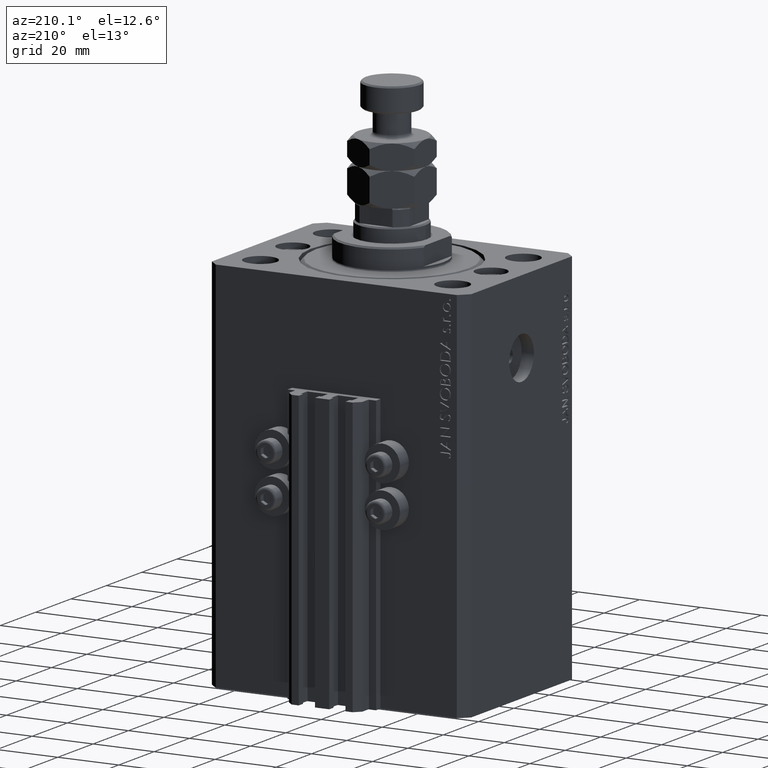
[diagram: clean part render]
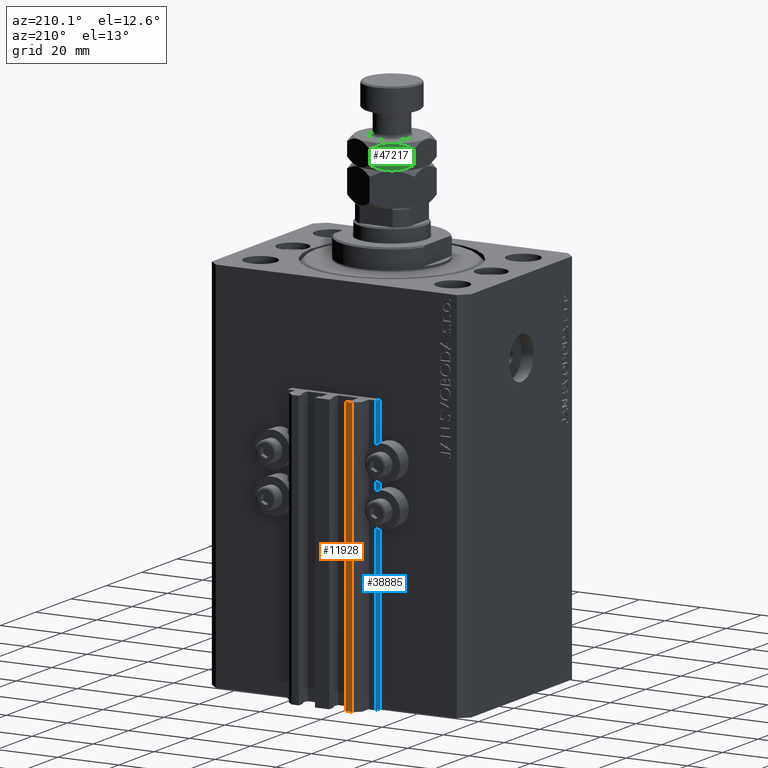
[diagram: same view with three faces highlighted in distinct colors, each labeled with its STEP entity id]
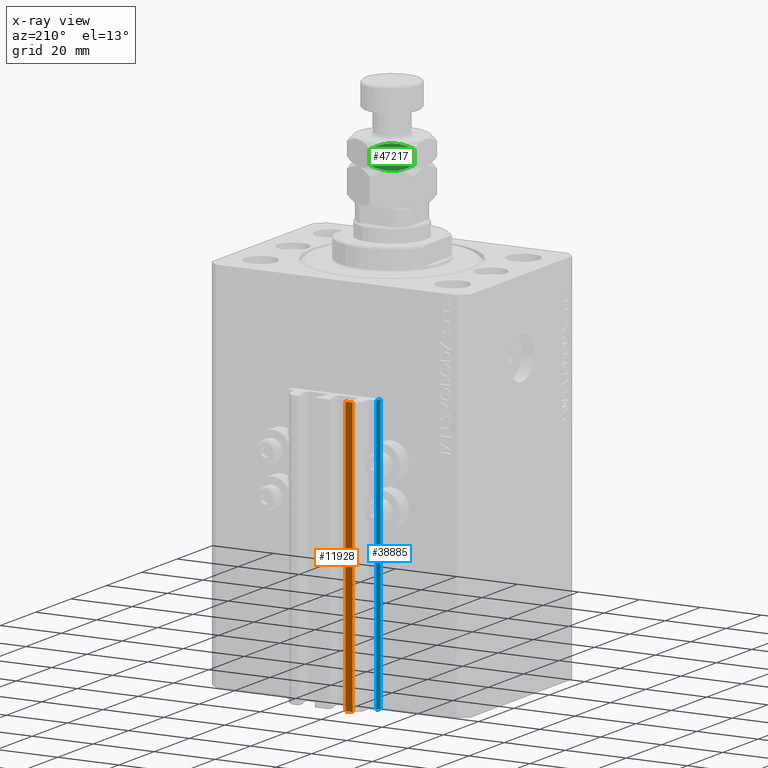
[diagram: x-ray of the same camera — body ghosted, the three highlighted faces saturated]
A machine part, auxiliary view with three faces highlighted in distinct colors.
The next image is the same camera in x-ray (body ghosted, the three faces saturated) — at least one of them is partly hidden behind the body in this view.
Their STEP definitions:

[orange] entity #11928 — the highlighted planar face has unit normal (0, 1, 0).
#21 = ORIENTED_EDGE ( 'NONE', *, *, #31590, .F. ) ;
#1249 = CARTESIAN_POINT ( 'NONE',  ( -7.650000000000002132, 39.49999999999999289, -123.0000000000000000 ) ) ;
#2793 = VERTEX_POINT ( 'NONE', #8799 ) ;
#3450 = EDGE_CURVE ( 'NONE', #37183, #2793, #37625, .T. ) ;
#4570 = CARTESIAN_POINT ( 'NONE',  ( -10.00000000000000000, 39.49999999999999289, -123.0000000000000000 ) ) ;
#5460 = CARTESIAN_POINT ( 'NONE',  ( -7.650000000000002132, 39.49999999999999289, -33.00000000000000000 ) ) ;
#7771 = VERTEX_POINT ( 'NONE', #1249 ) ;
#7856 = DIRECTION ( 'NONE',  ( 0.000000000000000000, 1.000000000000000000, -0.000000000000000000 ) ) ;
#8799 = CARTESIAN_POINT ( 'NONE',  ( -10.00000000000000000, 39.49999999999999289, -33.00000000000000000 ) ) ;
#10496 = EDGE_CURVE ( 'NONE', #7771, #37623, #31461, .T. ) ;
#11553 = PLANE ( 'NONE',  #17287 ) ;
#11928 = ADVANCED_FACE ( 'NONE', ( #45422 ), #11553, .T. ) ;
#14170 = EDGE_LOOP ( 'NONE', ( #37356, #21, #21540, #31360 ) ) ;
#15240 = VECTOR ( 'NONE', #17008, 1000.000000000000000 ) ;
#17008 = DIRECTION ( 'NONE',  ( 0.000000000000000000, 0.000000000000000000, 1.000000000000000000 ) ) ;
#17287 = AXIS2_PLACEMENT_3D ( 'NONE', #26639, #7856, #22932 ) ;
#18564 = VECTOR ( 'NONE', #27395, 1000.000000000000000 ) ;
#19974 = LINE ( 'NONE', #35318, #18564 ) ;
#20437 = VECTOR ( 'NONE', #38382, 1000.000000000000000 ) ;
#21218 = CARTESIAN_POINT ( 'NONE',  ( -10.00000000000000000, 39.49999999999999289, -123.0000000000000000 ) ) ;
#21540 = ORIENTED_EDGE ( 'NONE', *, *, #10496, .T. ) ;
#22932 = DIRECTION ( 'NONE',  ( 0.000000000000000000, 0.000000000000000000, 1.000000000000000000 ) ) ;
#23015 = CARTESIAN_POINT ( 'NONE',  ( -7.650000000000002132, 39.49999999999999289, -33.00000000000000000 ) ) ;
#23280 = CARTESIAN_POINT ( 'NONE',  ( -7.650000000000002132, 39.49999999999999289, -123.0000000000000000 ) ) ;
#26090 = EDGE_CURVE ( 'NONE', #37623, #2793, #46930, .T. ) ;
#26639 = CARTESIAN_POINT ( 'NONE',  ( -7.650000000000002132, 39.49999999999999289, -123.0000000000000000 ) ) ;
#26980 = DIRECTION ( 'NONE',  ( -1.000000000000000000, 0.000000000000000000, 0.000000000000000000 ) ) ;
#27395 = DIRECTION ( 'NONE',  ( 0.000000000000000000, 0.000000000000000000, 1.000000000000000000 ) ) ;
#31360 = ORIENTED_EDGE ( 'NONE', *, *, #26090, .T. ) ;
#31461 = LINE ( 'NONE', #23280, #20437 ) ;
#31590 = EDGE_CURVE ( 'NONE', #7771, #37183, #19974, .T. ) ;
#35318 = CARTESIAN_POINT ( 'NONE',  ( -7.650000000000002132, 39.49999999999999289, -123.0000000000000000 ) ) ;
#37183 = VERTEX_POINT ( 'NONE', #5460 ) ;
#37356 = ORIENTED_EDGE ( 'NONE', *, *, #3450, .F. ) ;
#37623 = VERTEX_POINT ( 'NONE', #4570 ) ;
#37625 = LINE ( 'NONE', #23015, #47090 ) ;
#38382 = DIRECTION ( 'NONE',  ( -1.000000000000000000, 0.000000000000000000, 0.000000000000000000 ) ) ;
#45422 = FACE_OUTER_BOUND ( 'NONE', #14170, .T. ) ;
#46930 = LINE ( 'NONE', #21218, #15240 ) ;
#47090 = VECTOR ( 'NONE', #26980, 1000.000000000000000 ) ;

[blue] entity #38885 — the highlighted planar face has unit normal (-1, 0, 0).
#479 = VERTEX_POINT ( 'NONE', #23336 ) ;
#1661 = EDGE_CURVE ( 'NONE', #479, #20154, #22685, .T. ) ;
#3172 = CARTESIAN_POINT ( 'NONE',  ( -14.50000000000000000, 33.99999999999998579, -123.0000000000000000 ) ) ;
#3965 = DIRECTION ( 'NONE',  ( -1.000000000000000000, 0.000000000000000000, 0.000000000000000000 ) ) ;
#5111 = VECTOR ( 'NONE', #11551, 1000.000000000000000 ) ;
#8019 = DIRECTION ( 'NONE',  ( 0.000000000000000000, 0.000000000000000000, 1.000000000000000000 ) ) ;
#9969 = CARTESIAN_POINT ( 'NONE',  ( -14.50000000000000000, 31.50000000000000000, -123.0000000000000000 ) ) ;
#11137 = FACE_OUTER_BOUND ( 'NONE', #17636, .T. ) ;
#11551 = DIRECTION ( 'NONE',  ( 0.000000000000000000, -1.000000000000000000, 0.000000000000000000 ) ) ;
#15059 = ORIENTED_EDGE ( 'NONE', *, *, #17990, .F. ) ;
#15426 = LINE ( 'NONE', #23091, #48643 ) ;
#16110 = CARTESIAN_POINT ( 'NONE',  ( -14.50000000000000000, 33.99999999999998579, -33.00000000000000000 ) ) ;
#16646 = ORIENTED_EDGE ( 'NONE', *, *, #30820, .F. ) ;
#17636 = EDGE_LOOP ( 'NONE', ( #16646, #15059, #37730, #27220 ) ) ;
#17990 = EDGE_CURVE ( 'NONE', #479, #19206, #38426, .T. ) ;
#19206 = VERTEX_POINT ( 'NONE', #16110 ) ;
#20154 = VERTEX_POINT ( 'NONE', #9969 ) ;
#21071 = VERTEX_POINT ( 'NONE', #22508 ) ;
#22506 = PLANE ( 'NONE',  #48794 ) ;
#22508 = CARTESIAN_POINT ( 'NONE',  ( -14.50000000000000000, 31.50000000000000000, -33.00000000000000000 ) ) ;
#22599 = CARTESIAN_POINT ( 'NONE',  ( -14.50000000000000000, 33.99999999999998579, -123.0000000000000000 ) ) ;
#22685 = LINE ( 'NONE', #3172, #30883 ) ;
#23091 = CARTESIAN_POINT ( 'NONE',  ( -14.50000000000000000, 31.50000000000000000, -123.0000000000000000 ) ) ;
#23336 = CARTESIAN_POINT ( 'NONE',  ( -14.50000000000000000, 33.99999999999998579, -123.0000000000000000 ) ) ;
#26462 = CARTESIAN_POINT ( 'NONE',  ( -14.50000000000000000, 33.99999999999998579, -123.0000000000000000 ) ) ;
#27220 = ORIENTED_EDGE ( 'NONE', *, *, #34556, .T. ) ;
#30820 = EDGE_CURVE ( 'NONE', #19206, #21071, #45918, .T. ) ;
#30883 = VECTOR ( 'NONE', #33583, 1000.000000000000000 ) ;
#33583 = DIRECTION ( 'NONE',  ( 0.000000000000000000, -1.000000000000000000, 0.000000000000000000 ) ) ;
#34556 = EDGE_CURVE ( 'NONE', #20154, #21071, #15426, .T. ) ;
#37458 = DIRECTION ( 'NONE',  ( 0.000000000000000000, 0.000000000000000000, 1.000000000000000000 ) ) ;
#37730 = ORIENTED_EDGE ( 'NONE', *, *, #1661, .T. ) ;
#38426 = LINE ( 'NONE', #22599, #47422 ) ;
#38885 = ADVANCED_FACE ( 'NONE', ( #11137 ), #22506, .T. ) ;
#45420 = CARTESIAN_POINT ( 'NONE',  ( -14.50000000000000000, 33.99999999999998579, -33.00000000000000000 ) ) ;
#45918 = LINE ( 'NONE', #45420, #5111 ) ;
#47422 = VECTOR ( 'NONE', #37458, 1000.000000000000000 ) ;
#48643 = VECTOR ( 'NONE', #8019, 1000.000000000000000 ) ;
#48702 = DIRECTION ( 'NONE',  ( 0.000000000000000000, 0.000000000000000000, 1.000000000000000000 ) ) ;
#48794 = AXIS2_PLACEMENT_3D ( 'NONE', #26462, #3965, #48702 ) ;

[green] entity #47217 — the highlighted planar face has unit normal (0.5, -0.866, 0).
#2654 = B_SPLINE_CURVE_WITH_KNOTS ( 'NONE', 3,
 ( #18008, #4588, #19176, #25666, #31059, #6892, #27092, #34275 ),
 .UNSPECIFIED., .F., .F.,
 ( 4, 2, 2, 4 ),
 ( 2.544311317614349830E-07, 0.003291871675740035575, 0.004937680298044171655, 0.006583488920348308168 ),
 .UNSPECIFIED. ) ;
#2678 = CARTESIAN_POINT ( 'NONE',  ( -4.327962126576701651E-16, 12.70170592217176342, 19.00000000000000000 ) ) ;
#3077 = VERTEX_POINT ( 'NONE', #25568 ) ;
#3648 = LINE ( 'NONE', #2678, #29940 ) ;
#4290 = CARTESIAN_POINT ( 'NONE',  ( -1.748214531935807337, 11.69237379155741330, 11.77768480452202660 ) ) ;
#4533 = CARTESIAN_POINT ( 'NONE',  ( -5.499999999999990230, 9.526279441628824785, 11.00000000000000000 ) ) ;
#4588 = CARTESIAN_POINT ( 'NONE',  ( -10.13752086928278651, 6.848805519375897433, 12.20375336388175036 ) ) ;
#5937 = EDGE_CURVE ( 'NONE', #38581, #3077, #32476, .T. ) ;
#6776 = CARTESIAN_POINT ( 'NONE',  ( -3.579894028994818900, 10.63485314086126898, 18.79187792513291910 ) ) ;
#6892 = CARTESIAN_POINT ( 'NONE',  ( -6.470625887979887914, 8.965888323921216596, 11.04365929743512353 ) ) ;
#7131 = B_SPLINE_CURVE_WITH_KNOTS ( 'NONE', 3,
 ( #4533, #38671, #45824, #4290, #11956, #7758 ),
 .UNSPECIFIED., .F., .F.,
 ( 4, 2, 4 ),
 ( 0.006583488920348308168, 0.009852050593448714866, 0.01312061226654912330 ),
 .UNSPECIFIED. ) ;
#7263 = CARTESIAN_POINT ( 'NONE',  ( -8.687195353749153437E-16, 12.70170592217176342, 17.29829407782823480 ) ) ;
#7758 = CARTESIAN_POINT ( 'NONE',  ( -2.313414311571351630E-16, 12.70170592217176342, 12.70170592217176342 ) ) ;
#8227 = B_SPLINE_CURVE_WITH_KNOTS ( 'NONE', 3,
 ( #7263, #25324, #33485, #21847, #6776, #32987, #37438, #14667 ),
 .UNSPECIFIED., .F., .F.,
 ( 4, 2, 2, 4 ),
 ( 2.544311317607208284E-07, 0.003291871675740029504, 0.004937680298044162114, 0.006583488920348295158 ),
 .UNSPECIFIED. ) ;
#9256 = CARTESIAN_POINT ( 'NONE',  ( -4.327962126576701651E-16, 12.70170592217176342, 19.00000000000000000 ) ) ;
#10929 = ORIENTED_EDGE ( 'NONE', *, *, #13174, .F. ) ;
#11711 = AXIS2_PLACEMENT_3D ( 'NONE', #9256, #46340, #24333 ) ;
#11726 = EDGE_CURVE ( 'NONE', #18740, #42676, #3648, .T. ) ;
#11956 = CARTESIAN_POINT ( 'NONE',  ( -0.8614806024966434883, 12.20432986441868550, 12.20432986441860734 ) ) ;
#12200 = CARTESIAN_POINT ( 'NONE',  ( -10.13851939750335696, 6.848229018838956073, 17.79567013558138910 ) ) ;
#13174 = EDGE_CURVE ( 'NONE', #43833, #42676, #7131, .T. ) ;
#13878 = EDGE_CURVE ( 'NONE', #44190, #38581, #40144, .T. ) ;
#14667 = CARTESIAN_POINT ( 'NONE',  ( -5.499999999999997335, 9.526279441628819455, 19.00000000000000000 ) ) ;
#15174 = CARTESIAN_POINT ( 'NONE',  ( -7.397073880711849903, 8.431003325927227010, 18.83109139163524759 ) ) ;
#16154 = CARTESIAN_POINT ( 'NONE',  ( -11.00000000000000000, 6.350852961085878157, 17.29829407782823125 ) ) ;
#17634 = CARTESIAN_POINT ( 'NONE',  ( -2.313414311571351630E-16, 12.70170592217176342, 12.70170592217176342 ) ) ;
#18008 = CARTESIAN_POINT ( 'NONE',  ( -11.00000000000000000, 6.350852961085879045, 12.70170592217176342 ) ) ;
#18085 = CARTESIAN_POINT ( 'NONE',  ( -5.499999999999990230, 9.526279441628824785, 11.00000000000000000 ) ) ;
#18156 = CARTESIAN_POINT ( 'NONE',  ( -5.499999999999997335, 9.526279441628819455, 19.00000000000000000 ) ) ;
#18740 = VERTEX_POINT ( 'NONE', #41448 ) ;
#19176 = CARTESIAN_POINT ( 'NONE',  ( -9.255521992360788985, 7.358027808391761404, 11.78062338754677363 ) ) ;
#19622 = CARTESIAN_POINT ( 'NONE',  ( -6.456670474420574735, 8.973945485696338764, 19.00000000000000000 ) ) ;
#19906 = ORIENTED_EDGE ( 'NONE', *, *, #48538, .F. ) ;
#20144 = ORIENTED_EDGE ( 'NONE', *, *, #35699, .F. ) ;
#20845 = DIRECTION ( 'NONE',  ( -0.000000000000000000, -0.000000000000000000, -1.000000000000000000 ) ) ;
#21098 = FACE_OUTER_BOUND ( 'NONE', #21119, .T. ) ;
#21119 = EDGE_LOOP ( 'NONE', ( #19906, #24149, #35973, #20144, #35703, #10929 ) ) ;
#21847 = CARTESIAN_POINT ( 'NONE',  ( -3.115032419653385620, 10.90324111615046476, 18.67178078790958295 ) ) ;
#24085 = PLANE ( 'NONE',  #11711 ) ;
#24149 = ORIENTED_EDGE ( 'NONE', *, *, #5937, .F. ) ;
#24333 = DIRECTION ( 'NONE',  ( 0.8660254037844385966, 0.5000000000000001110, 0.000000000000000000 ) ) ;
#25040 = CARTESIAN_POINT ( 'NONE',  ( -11.00000000000000000, 6.350852961085879045, 19.00000000000000000 ) ) ;
#25324 = CARTESIAN_POINT ( 'NONE',  ( -0.8624791307172139376, 12.20375336388174681, 17.79624663611825497 ) ) ;
#25568 = CARTESIAN_POINT ( 'NONE',  ( -11.00000000000000000, 6.350852961085879045, 12.70170592217176342 ) ) ;
#25666 = CARTESIAN_POINT ( 'NONE',  ( -7.884967580346606830, 8.149317767107174149, 11.32821921209040283 ) ) ;
#27092 = CARTESIAN_POINT ( 'NONE',  ( -5.981709287746634907, 9.248164454677159085, 11.00000000000000355 ) ) ;
#29940 = VECTOR ( 'NONE', #43961, 1000.000000000000000 ) ;
#31059 = CARTESIAN_POINT ( 'NONE',  ( -7.420105971005174439, 8.417705742396377033, 11.20812207486707379 ) ) ;
#32476 = LINE ( 'NONE', #25040, #38495 ) ;
#32987 = CARTESIAN_POINT ( 'NONE',  ( -4.529374112020104093, 10.08667055933643297, 18.95634070256487647 ) ) ;
#33485 = CARTESIAN_POINT ( 'NONE',  ( -1.744478007639208128, 11.69453107486588550, 18.21937661245322104 ) ) ;
#33990 = CARTESIAN_POINT ( 'NONE',  ( -9.251785468064189999, 7.360185091700231830, 18.22231519547796452 ) ) ;
#34275 = CARTESIAN_POINT ( 'NONE',  ( -5.499999999999990230, 9.526279441628824785, 11.00000000000000000 ) ) ;
#35699 = EDGE_CURVE ( 'NONE', #18740, #44190, #8227, .T. ) ;
#35703 = ORIENTED_EDGE ( 'NONE', *, *, #11726, .T. ) ;
#35973 = ORIENTED_EDGE ( 'NONE', *, *, #13878, .F. ) ;
#37438 = CARTESIAN_POINT ( 'NONE',  ( -5.018290712253357100, 9.804394428580486931, 18.99999999999999289 ) ) ;
#38396 = CARTESIAN_POINT ( 'NONE',  ( -11.00000000000000000, 6.350852961085878157, 17.29829407782823125 ) ) ;
#38495 = VECTOR ( 'NONE', #20845, 1000.000000000000000 ) ;
#38581 = VERTEX_POINT ( 'NONE', #38396 ) ;
#38671 = CARTESIAN_POINT ( 'NONE',  ( -4.543329525579416384, 10.07861339756131258, 11.00000000000000355 ) ) ;
#40144 = B_SPLINE_CURVE_WITH_KNOTS ( 'NONE', 3,
 ( #18156, #19622, #15174, #33990, #12200, #16154 ),
 .UNSPECIFIED., .F., .F.,
 ( 4, 2, 4 ),
 ( 0.006583488920348295158, 0.009852050593448709662, 0.01312061226654912677 ),
 .UNSPECIFIED. ) ;
#41448 = CARTESIAN_POINT ( 'NONE',  ( -8.687195353749153437E-16, 12.70170592217176342, 17.29829407782823480 ) ) ;
#42676 = VERTEX_POINT ( 'NONE', #17634 ) ;
#43833 = VERTEX_POINT ( 'NONE', #18085 ) ;
#43961 = DIRECTION ( 'NONE',  ( -0.000000000000000000, -0.000000000000000000, -1.000000000000000000 ) ) ;
#44190 = VERTEX_POINT ( 'NONE', #48425 ) ;
#45824 = CARTESIAN_POINT ( 'NONE',  ( -3.602926119288148321, 10.62155555733041545, 11.16890860836476129 ) ) ;
#46340 = DIRECTION ( 'NONE',  ( 0.5000000000000001110, -0.8660254037844385966, 0.000000000000000000 ) ) ;
#47217 = ADVANCED_FACE ( 'NONE', ( #21098 ), #24085, .F. ) ;
#48425 = CARTESIAN_POINT ( 'NONE',  ( -5.499999999999997335, 9.526279441628819455, 19.00000000000000000 ) ) ;
#48538 = EDGE_CURVE ( 'NONE', #3077, #43833, #2654, .T. ) ;